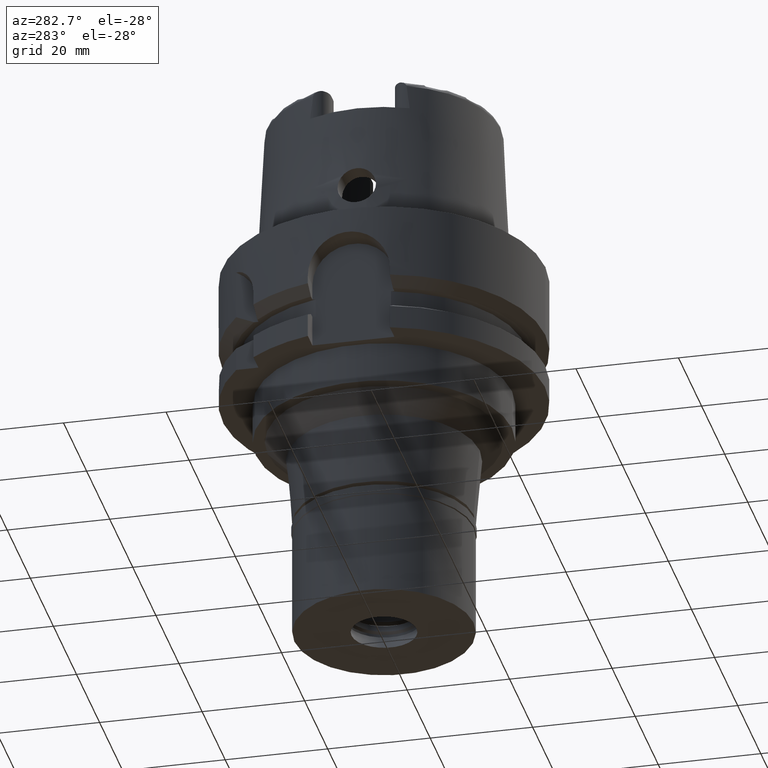
[diagram: clean part render]
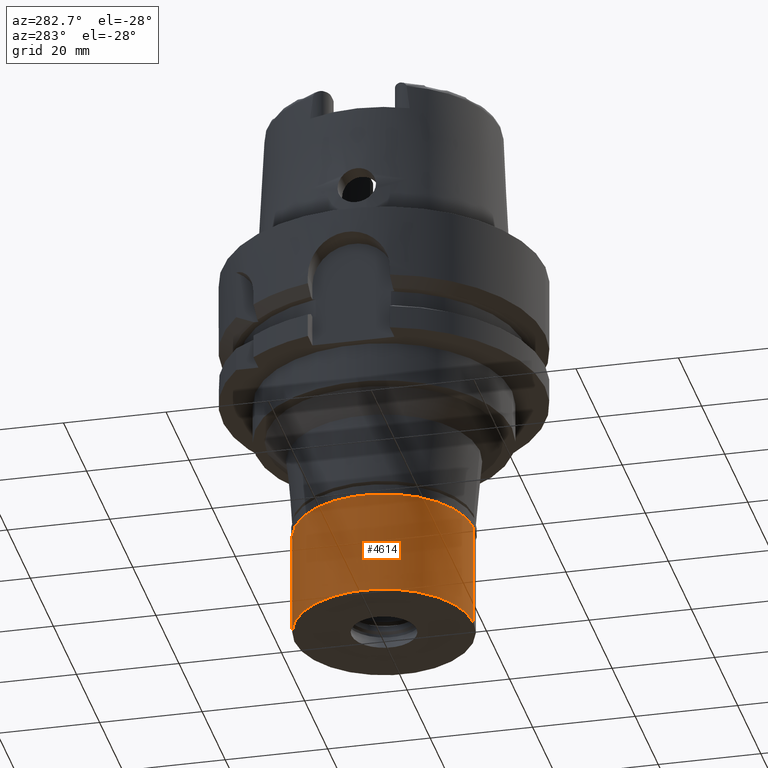
[diagram: same view with one face highlighted and labeled with its STEP entity id]
A machine part, auxiliary view. The second image highlights one B-rep face of the part: STEP entity #4614.
In plain terms, the highlighted cylindrical surface (partial cylindrical patch) has radius 17.5 mm, axis along (0, 0, -1).
Its self-contained STEP definition (entity closure, byte-faithful):
#40 = CIRCLE ( 'NONE', #1593, 17.50000000000000000 ) ;
#241 = CARTESIAN_POINT ( 'NONE',  ( 0.0000000000000000000, 17.50000000000000000, -22.50000000000000000 ) ) ;
#282 = CARTESIAN_POINT ( 'NONE',  ( 0.0000000000000000000, 0.0000000000000000000, 0.0000000000000000000 ) ) ;
#303 = EDGE_CURVE ( 'NONE', #1115, #3959, #5485, .T. ) ;
#442 = DIRECTION ( 'NONE',  ( 0.0000000000000000000, 0.0000000000000000000, 1.000000000000000000 ) ) ;
#627 = CARTESIAN_POINT ( 'NONE',  ( 0.0000000000000000000, 0.0000000000000000000, -2.000000000000000000 ) ) ;
#1115 = VERTEX_POINT ( 'NONE', #241 ) ;
#1230 = CARTESIAN_POINT ( 'NONE',  ( 0.0000000000000000000, -17.50000000000000000, -2.000000000000000000 ) ) ;
#1256 = EDGE_CURVE ( 'NONE', #4663, #3959, #3882, .T. ) ;
#1405 = DIRECTION ( 'NONE',  ( 0.0000000000000000000, -1.000000000000000000, 0.0000000000000000000 ) ) ;
#1422 = AXIS2_PLACEMENT_3D ( 'NONE', #282, #3782, #3412 ) ;
#1593 = AXIS2_PLACEMENT_3D ( 'NONE', #627, #3566, #1405 ) ;
#1653 = LINE ( 'NONE', #3447, #4049 ) ;
#1736 = DIRECTION ( 'NONE',  ( 0.0000000000000000000, 0.0000000000000000000, -1.000000000000000000 ) ) ;
#2138 = DIRECTION ( 'NONE',  ( 0.0000000000000000000, 1.000000000000000000, 0.0000000000000000000 ) ) ;
#2321 = EDGE_LOOP ( 'NONE', ( #3810, #2918, #2658, #2449 ) ) ;
#2417 = EDGE_CURVE ( 'NONE', #3895, #1115, #1653, .T. ) ;
#2449 = ORIENTED_EDGE ( 'NONE', *, *, #2417, .T. ) ;
#2478 = CARTESIAN_POINT ( 'NONE',  ( 0.0000000000000000000, 0.0000000000000000000, -22.50000000000000000 ) ) ;
#2658 = ORIENTED_EDGE ( 'NONE', *, *, #3893, .T. ) ;
#2918 = ORIENTED_EDGE ( 'NONE', *, *, #1256, .F. ) ;
#3021 = AXIS2_PLACEMENT_3D ( 'NONE', #2478, #442, #2138 ) ;
#3172 = CARTESIAN_POINT ( 'NONE',  ( 0.0000000000000000000, 17.50000000000000000, -2.000000000000000000 ) ) ;
#3412 = DIRECTION ( 'NONE',  ( 0.0000000000000000000, -1.000000000000000000, 0.0000000000000000000 ) ) ;
#3447 = CARTESIAN_POINT ( 'NONE',  ( 0.0000000000000000000, 17.50000000000000000, -2.000000000000000000 ) ) ;
#3566 = DIRECTION ( 'NONE',  ( 0.0000000000000000000, 0.0000000000000000000, -1.000000000000000000 ) ) ;
#3581 = VECTOR ( 'NONE', #4278, 1000.000000000000000 ) ;
#3782 = DIRECTION ( 'NONE',  ( 0.0000000000000000000, 0.0000000000000000000, -1.000000000000000000 ) ) ;
#3810 = ORIENTED_EDGE ( 'NONE', *, *, #303, .T. ) ;
#3882 = LINE ( 'NONE', #5217, #3581 ) ;
#3893 = EDGE_CURVE ( 'NONE', #4663, #3895, #40, .T. ) ;
#3895 = VERTEX_POINT ( 'NONE', #3172 ) ;
#3959 = VERTEX_POINT ( 'NONE', #4601 ) ;
#4049 = VECTOR ( 'NONE', #1736, 1000.000000000000000 ) ;
#4278 = DIRECTION ( 'NONE',  ( 0.0000000000000000000, 0.0000000000000000000, -1.000000000000000000 ) ) ;
#4601 = CARTESIAN_POINT ( 'NONE',  ( 0.0000000000000000000, -17.50000000000000000, -22.50000000000000000 ) ) ;
#4614 = ADVANCED_FACE ( 'NONE', ( #5091 ), #5571, .T. ) ;
#4663 = VERTEX_POINT ( 'NONE', #1230 ) ;
#5091 = FACE_OUTER_BOUND ( 'NONE', #2321, .T. ) ;
#5217 = CARTESIAN_POINT ( 'NONE',  ( 0.0000000000000000000, -17.50000000000000000, -2.000000000000000000 ) ) ;
#5485 = CIRCLE ( 'NONE', #3021, 17.50000000000000000 ) ;
#5571 = CYLINDRICAL_SURFACE ( 'NONE', #1422, 17.50000000000000000 ) ;